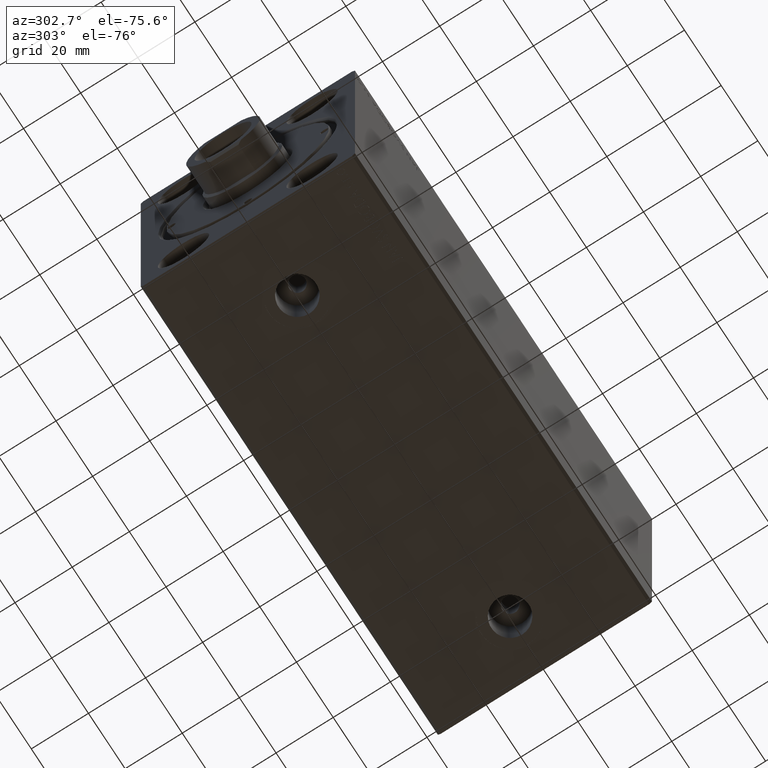
[diagram: clean part render]
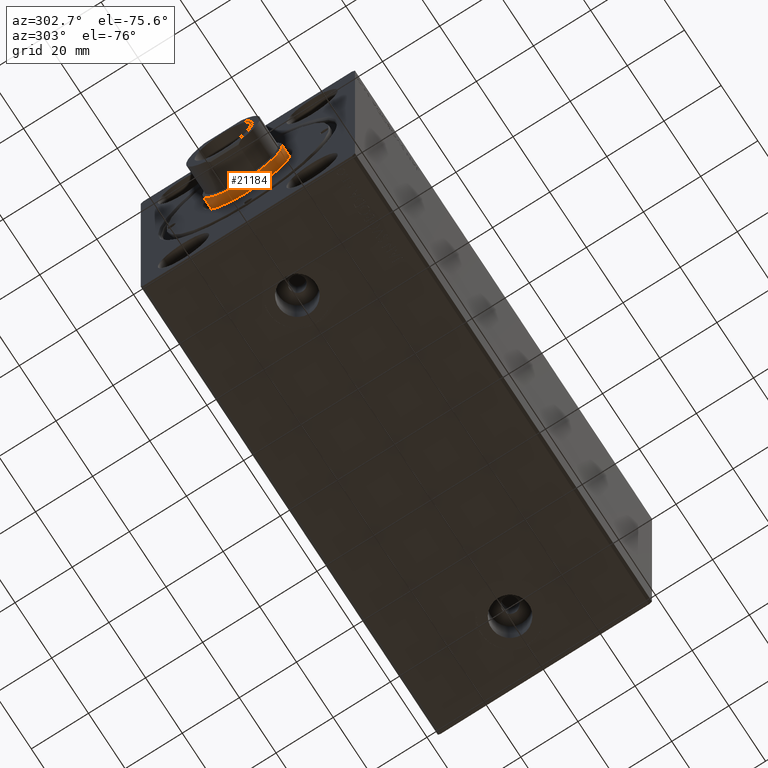
[diagram: same view with one face highlighted and labeled with its STEP entity id]
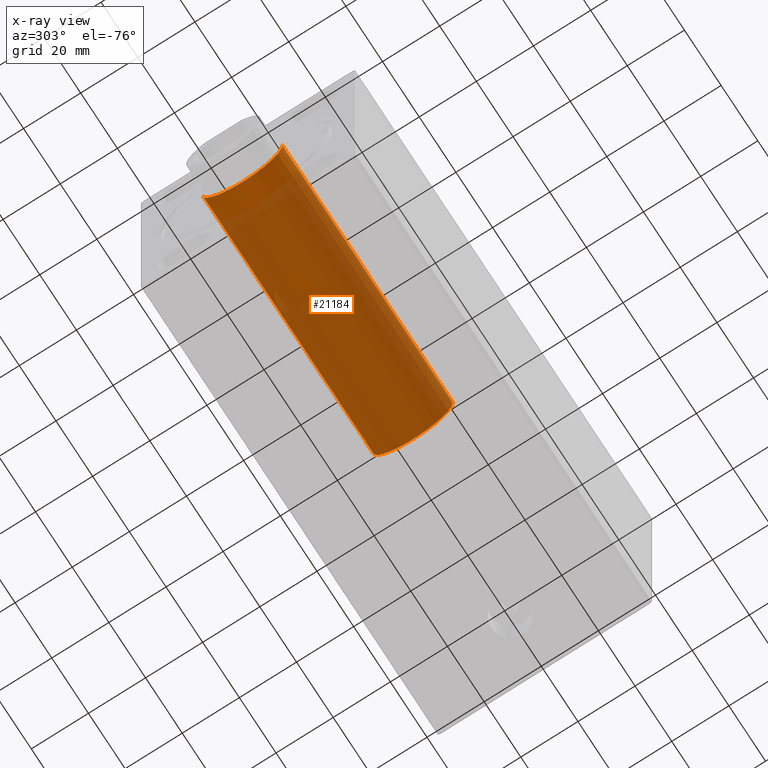
[diagram: x-ray of the same camera — body ghosted, the highlighted face saturated]
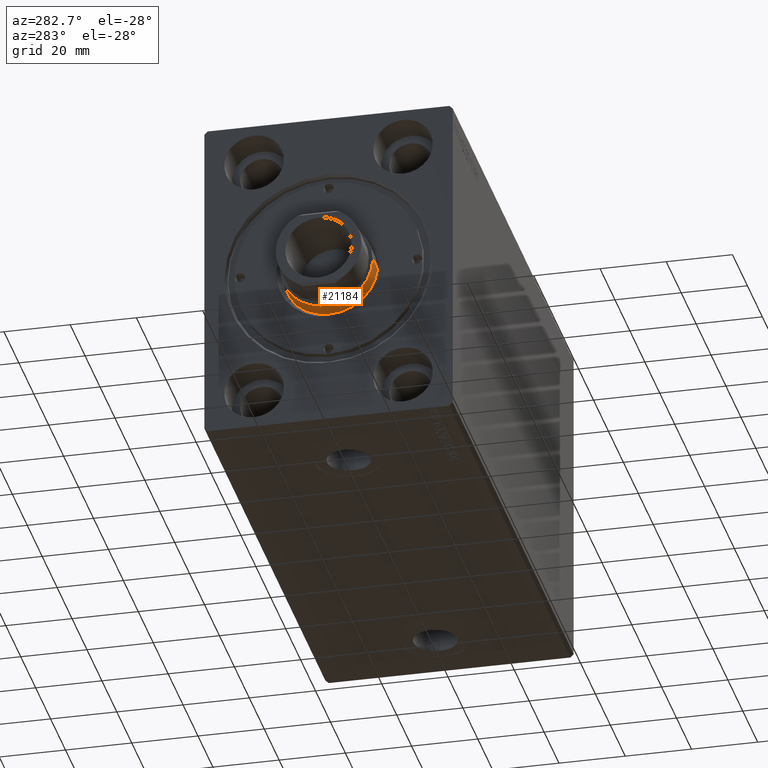
[diagram: same view with one face highlighted and labeled with its STEP entity id]
A machine part, auxiliary view. The second image highlights one B-rep face of the part: STEP entity #21184.
The next image is the same camera in x-ray: the body ghosted, the highlighted face saturated — about 89% of this face is hidden behind the body in this view.
A second angle (auxiliary view) of the same face is appended — the face is thin or edge-on in the first view.
In plain terms, the highlighted cylindrical surface (partial cylindrical patch) has radius 14 mm, axis along (-1, -0, 0).
Its self-contained STEP definition (entity closure, byte-faithful):
#2541 = DIRECTION ( 'NONE',  ( -0.000000000000000000, -1.704084742170593683E-16, 1.000000000000000000 ) ) ;
#2669 = CARTESIAN_POINT ( 'NONE',  ( 0.000000000000000000, -14.00000000000003020, 118.0000000000000000 ) ) ;
#4106 = FACE_OUTER_BOUND ( 'NONE', #38623, .T. ) ;
#6195 = DIRECTION ( 'NONE',  ( 0.000000000000000000, -1.000000000000000000, -2.478176394252580648E-16 ) ) ;
#7974 = AXIS2_PLACEMENT_3D ( 'NONE', #36279, #2541, #39865 ) ;
#11068 = VERTEX_POINT ( 'NONE', #2669 ) ;
#11499 = AXIS2_PLACEMENT_3D ( 'NONE', #23478, #37220, #6195 ) ;
#12274 = AXIS2_PLACEMENT_3D ( 'NONE', #35361, #41215, #24774 ) ;
#14371 = CIRCLE ( 'NONE', #11499, 14.00000000000000533 ) ;
#15415 = EDGE_CURVE ( 'NONE', #21751, #11068, #43912, .T. ) ;
#17077 = VECTOR ( 'NONE', #34198, 1000.000000000000000 ) ;
#19957 = CARTESIAN_POINT ( 'NONE',  ( 0.000000000000000000, -14.00000000000000888, 24.99999999999998934 ) ) ;
#21184 = ADVANCED_FACE ( 'NONE', ( #4106 ), #28160, .T. ) ;
#21191 = LINE ( 'NONE', #38523, #21508 ) ;
#21508 = VECTOR ( 'NONE', #34929, 1000.000000000000000 ) ;
#21751 = VERTEX_POINT ( 'NONE', #42398 ) ;
#22586 = ORIENTED_EDGE ( 'NONE', *, *, #36393, .F. ) ;
#23478 = CARTESIAN_POINT ( 'NONE',  ( 0.000000000000000000, -4.260211855426483763E-15, 24.99999999999999289 ) ) ;
#24774 = DIRECTION ( 'NONE',  ( 0.000000000000000000, -1.000000000000000000, 0.000000000000000000 ) ) ;
#26688 = ORIENTED_EDGE ( 'NONE', *, *, #27879, .T. ) ;
#27879 = EDGE_CURVE ( 'NONE', #35382, #29334, #14371, .T. ) ;
#28160 = CYLINDRICAL_SURFACE ( 'NONE', #12274, 14.00000000000000533 ) ;
#29334 = VERTEX_POINT ( 'NONE', #19957 ) ;
#34198 = DIRECTION ( 'NONE',  ( -0.000000000000000000, -1.704084742170593683E-16, 1.000000000000000000 ) ) ;
#34929 = DIRECTION ( 'NONE',  ( -0.000000000000000000, -1.704084742170593683E-16, 1.000000000000000000 ) ) ;
#35361 = CARTESIAN_POINT ( 'NONE',  ( 0.000000000000000000, -2.189748893689212880E-14, 128.5000000000000000 ) ) ;
#35382 = VERTEX_POINT ( 'NONE', #37430 ) ;
#36279 = CARTESIAN_POINT ( 'NONE',  ( 0.000000000000000000, -2.010819995761300595E-14, 118.0000000000000000 ) ) ;
#36393 = EDGE_CURVE ( 'NONE', #35382, #21751, #38014, .T. ) ;
#37220 = DIRECTION ( 'NONE',  ( -0.000000000000000000, -1.704084742170593683E-16, 1.000000000000000000 ) ) ;
#37430 = CARTESIAN_POINT ( 'NONE',  ( 1.714505518806296216E-15, 14.00000000000000178, 24.99999999999999645 ) ) ;
#38014 = LINE ( 'NONE', #40500, #17077 ) ;
#38523 = CARTESIAN_POINT ( 'NONE',  ( 0.000000000000000000, -14.00000000000002842, 128.5000000000000000 ) ) ;
#38623 = EDGE_LOOP ( 'NONE', ( #22586, #26688, #44122, #44392 ) ) ;
#39865 = DIRECTION ( 'NONE',  ( 0.000000000000000000, -1.000000000000000000, 0.000000000000000000 ) ) ;
#40500 = CARTESIAN_POINT ( 'NONE',  ( 1.714505518806295032E-15, 13.99999999999998224, 128.5000000000000000 ) ) ;
#41215 = DIRECTION ( 'NONE',  ( -0.000000000000000000, -1.704084742170593683E-16, 1.000000000000000000 ) ) ;
#41443 = EDGE_CURVE ( 'NONE', #29334, #11068, #21191, .T. ) ;
#42398 = CARTESIAN_POINT ( 'NONE',  ( 1.714505518806295427E-15, 13.99999999999998934, 118.0000000000000000 ) ) ;
#43912 = CIRCLE ( 'NONE', #7974, 14.00000000000000888 ) ;
#44122 = ORIENTED_EDGE ( 'NONE', *, *, #41443, .T. ) ;
#44392 = ORIENTED_EDGE ( 'NONE', *, *, #15415, .F. ) ;